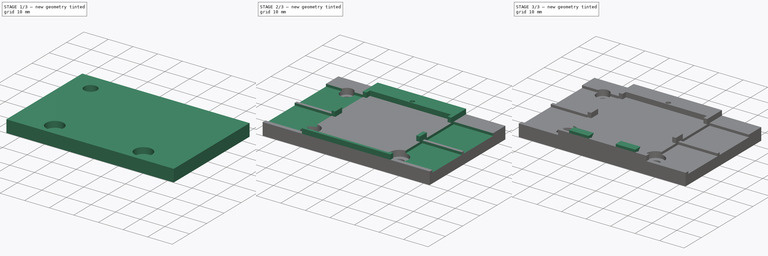
[diagram: build sequence overview — one tinted view per stage of 3, left to right]
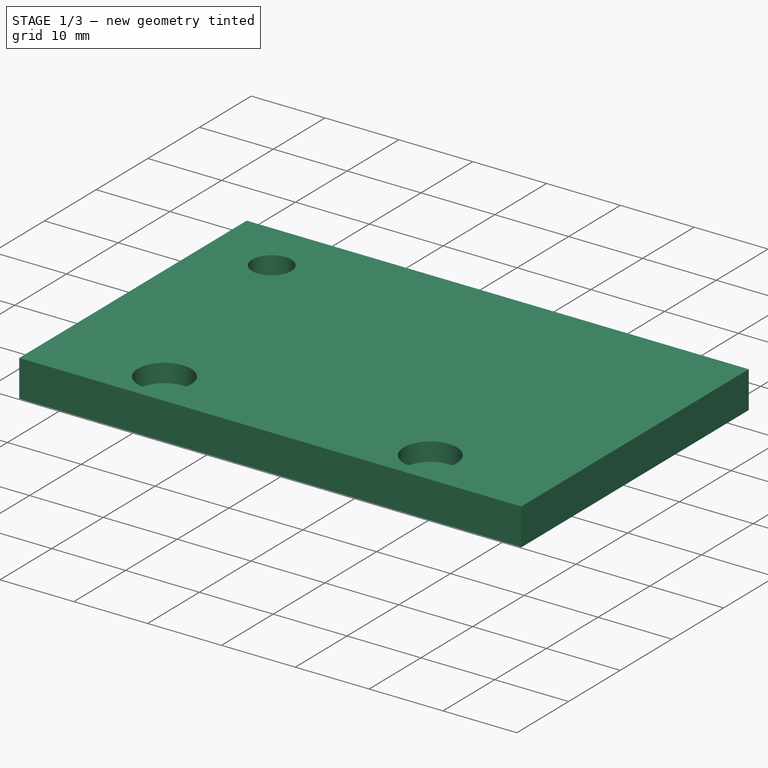
[diagram: stage 1 of 3 — iso view after this stage's code; geometry added in this stage tinted green]
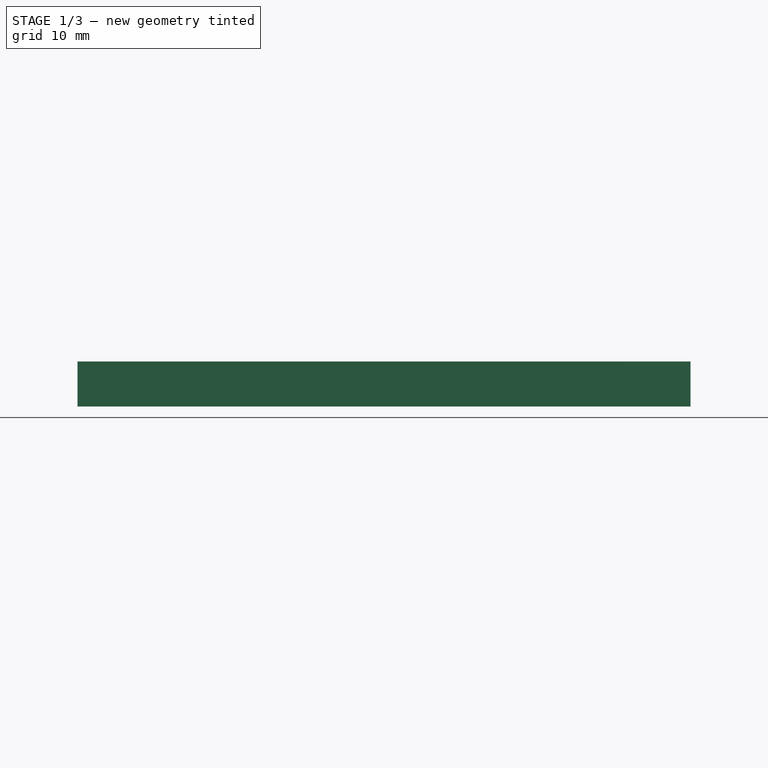
[diagram: stage 1 of 3 — front view after this stage's code; geometry added in this stage tinted green]
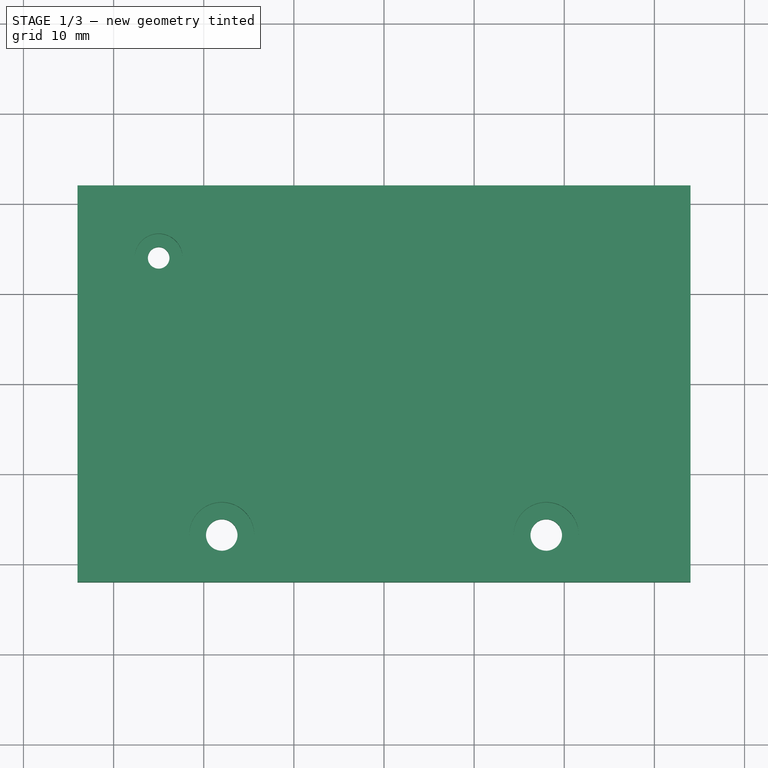
[diagram: stage 1 of 3 — top view after this stage's code; geometry added in this stage tinted green]
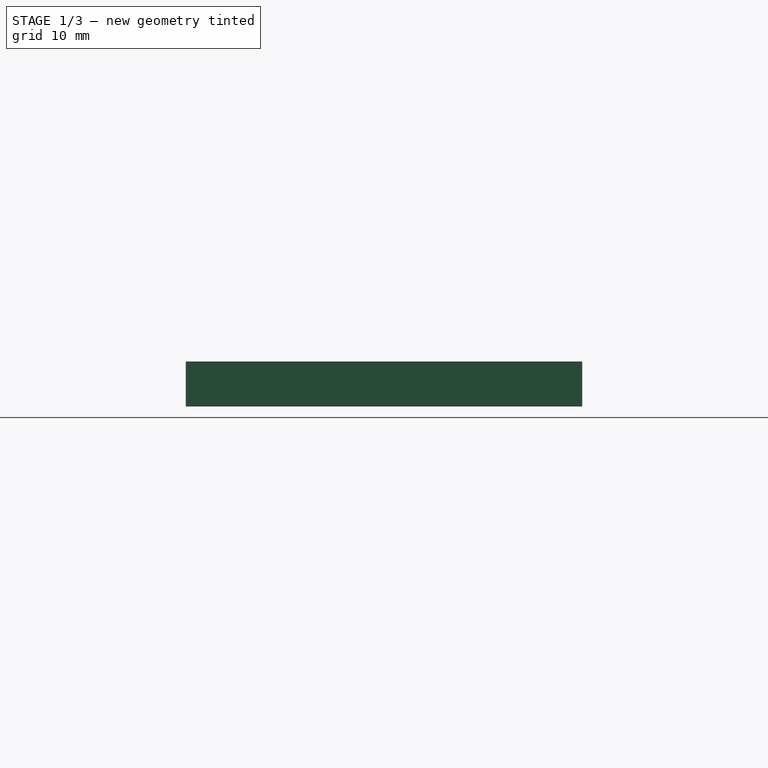
[diagram: stage 1 of 3 — right view after this stage's code; geometry added in this stage tinted green]
FCSTD DOCUMENT  (FreeCAD 1.0R39319 (Git))
Label: UsbPcbHub2
License: All rights reserved
LicenseURL: https://en.wikipedia.org/wiki/All_rights_reserved
objects: Sketcher::SketchObject×7, PartDesign::Pocket×4, PartDesign::Pad×3, App::VarSet×1, PartDesign::Body×1
note: 36 computed .brp shape members not serialized (recipe doc carries the construction recipe); baked Part::Feature solids carry a one-line shape summary decoded from their .brp

FEATURE [App::VarSet] VarSet
  BlackHeaderDiameter = 7.2
  BlackHeaderHeight = 2
  BlackPassThroughDiameter = 3.5
  BorderToLan = 30
  BorderToSD = 36
  DX = 68
  DY = 44
  FrontScrewDistance = 58
  Guide = 1.5
  Margin = 1
  MiniBlackHeaderDiameter = 5.3
  MiniBlackPassThroughDiameter = 2.4
  MiniBlackSelfTappingDiameter = 1.8
  PcbDX = 36.4
  PcbDY = 33
  PcbThickness = 2
  PlatformThickness = 5
  UsbConnectorRecess = 1
FEATURE [Sketcher::SketchObject] Sketch
  ArcFitTolerance = 1e-06
  AttachmentSupport = -> [XY_Plane]
  FullyConstrained = true
  MakeInternals = false
  MapMode = 5
  expr: Constraints[15] = VarSet.BlackPassThroughDiameter
  expr: Constraints[19] = 10.5 mm / 2
  expr: Constraints[27] = VarSet.BorderToSD
  expr: Constraints[29] = VarSet.MiniBlackPassThroughDiameter
  expr: Constraints[8] = VarSet.DX
  expr: Constraints[9] = VarSet.DY
  sketch-geometry (11):
    g0: LineSegment StartX=34 StartY=-22 StartZ=0 EndX=34 EndY=22 EndZ=0
    g1: LineSegment StartX=34 StartY=22 StartZ=0 EndX=-34 EndY=22 EndZ=0
    g2: LineSegment StartX=-34 StartY=22 StartZ=0 EndX=-34 EndY=-22 EndZ=0
    g3: LineSegment StartX=-34 StartY=-22 StartZ=0 EndX=34 EndY=-22 EndZ=0
    g4: Circle CenterX=18 CenterY=-16.75 CenterZ=0 NormalX=0 NormalY=0 NormalZ=1 AngleXU=0 Radius=1.75
    g5: Circle CenterX=-18 CenterY=-16.75 CenterZ=0 NormalX=0 NormalY=0 NormalZ=1 AngleXU=0 Radius=1.75
    g6: LineSegment [constr] StartX=-18 StartY=-16.75 StartZ=0 EndX=18 EndY=-16.75 EndZ=0
    g7: LineSegment [constr] StartX=18 StartY=-16.75 StartZ=0 EndX=18 EndY=-22 EndZ=0
    g8: LineSegment [constr] StartX=-25 StartY=-22 StartZ=0 EndX=-25 EndY=14 EndZ=0
    g9: LineSegment [constr] StartX=-25 StartY=14 StartZ=0 EndX=-34 EndY=14 EndZ=0
    g10: Circle CenterX=-25 CenterY=14 CenterZ=0 NormalX=0 NormalY=0 NormalZ=1 AngleXU=0 Radius=1.2
  constraints (30):
    c: Coincident(g0,g1)
    c: Coincident(g1,g2)
    c: Coincident(g2,g3)
    c: Coincident(g3,g0)
    c: Vertical(g0)
    c: Vertical(g2)
    c: Horizontal(g1)
    c: Horizontal(g3)
    c: Distance(g1) = 68
    c: Distance(g2) = 44
    c: Symmetric(g0,g2,g-1)
    c: Coincident(g6,g5)
    c: Coincident(g6,g4)
    c: Distance(g6) = 36
    c: Symmetric(g4,g5,g-2)
    c: Diameter(g4) = 3.5
    c: Coincident(g7,g4)
    c: PointOnObject(g7,g3)
    c: Vertical(g7)
    c: Distance(g7) = 5.25
    c: Equal(g4,g5)
    c: PointOnObject(g8,g3)
    c: Vertical(g8)
    c: Coincident(g9,g8)
    c: PointOnObject(g9,g2)
    c: Horizontal(g9)
    c: Distance(g9) = 9
    c: Distance(g8) = 36
    c: Coincident(g10,g8)
    c: Diameter(g10) = 2.4
FEATURE [PartDesign::Pad] Pad  label="Platform"
  Direction = (0,0,1)
  Length = 5
  Length2 = 10
  Profile = -> Sketch
  ReferenceAxis = -> Sketch [N_Axis]
  Refine = true
  Suppressed = false
  Type = 0
  expr: Length = VarSet.PlatformThickness
FEATURE [Sketcher::SketchObject] Sketch001
  ArcFitTolerance = 1e-06
  AttachmentSupport = -> [Pad]
  ExternalGeometry = -> [Pad]
  FullyConstrained = true
  MakeInternals = false
  MapMode = 5
  Placement = pos=(0,0,5) rot=(0,0,1;0rad)
  expr: Constraints[3] = VarSet.BlackHeaderDiameter
  expr: Constraints[5] = VarSet.MiniBlackHeaderDiameter
  sketch-geometry (3):
    g0: Circle CenterX=-18 CenterY=-16.75 CenterZ=0 NormalX=0 NormalY=0 NormalZ=1 AngleXU=0 Radius=3.6
    g1: Circle CenterX=18 CenterY=-16.75 CenterZ=0 NormalX=0 NormalY=0 NormalZ=1 AngleXU=0 Radius=3.6
    g2: Circle CenterX=-25 CenterY=14 CenterZ=0 NormalX=0 NormalY=0 NormalZ=1 AngleXU=0 Radius=2.65
  constraints (6):
    c: Coincident(g0,g-4)
    c: Coincident(g1,g-3)
    c: Equal(g1,g0)
    c: Diameter(g1) = 7.2
    c: Coincident(g2,g-5)
    c: Diameter(g2) = 5.3
FEATURE [PartDesign::Pocket] Pocket  label="Screw Header Recess"
  BaseFeature = -> Pad
  Direction = (0,0,-1)
  Length = 2.5
  Length2 = 5
  Profile = -> Sketch001
  ReferenceAxis = -> Sketch001 [N_Axis]
  Refine = true
  Suppressed = false
  Type = 0
  expr: Length = VarSet.BlackHeaderHeight + 0.5 mm
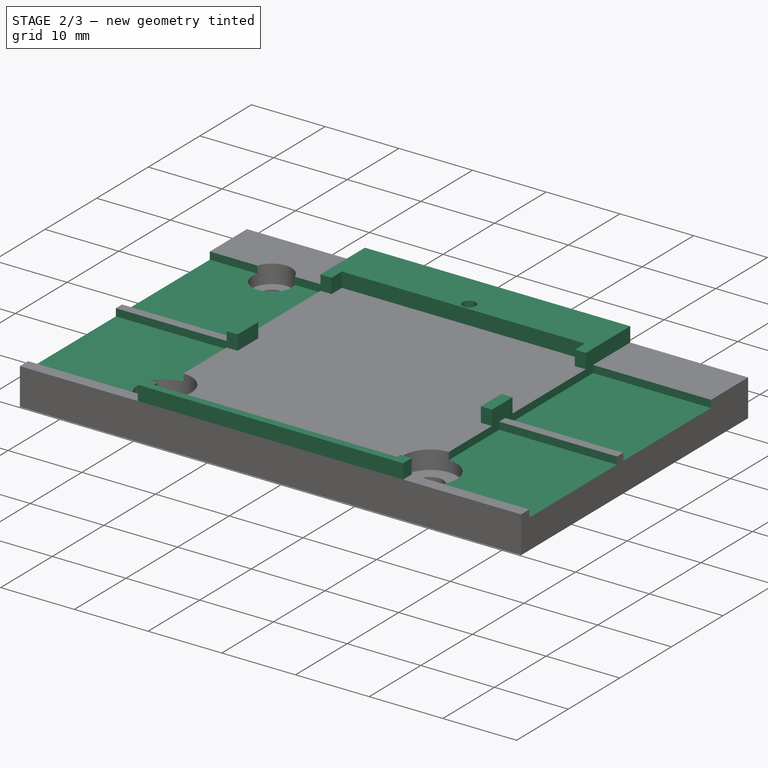
[diagram: stage 2 of 3 — iso view after this stage's code; geometry added in this stage tinted green]
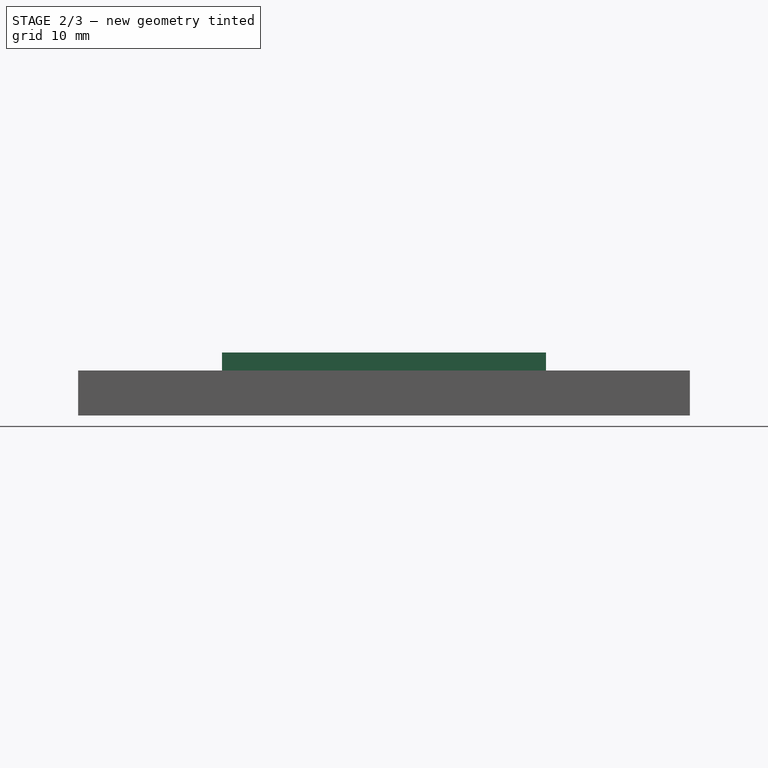
[diagram: stage 2 of 3 — front view after this stage's code; geometry added in this stage tinted green]
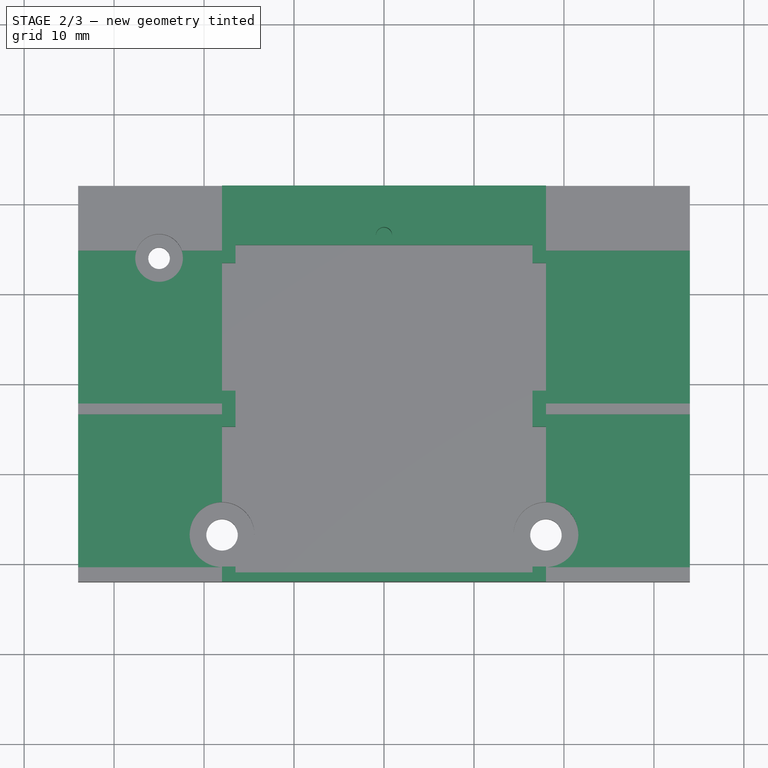
[diagram: stage 2 of 3 — top view after this stage's code; geometry added in this stage tinted green]
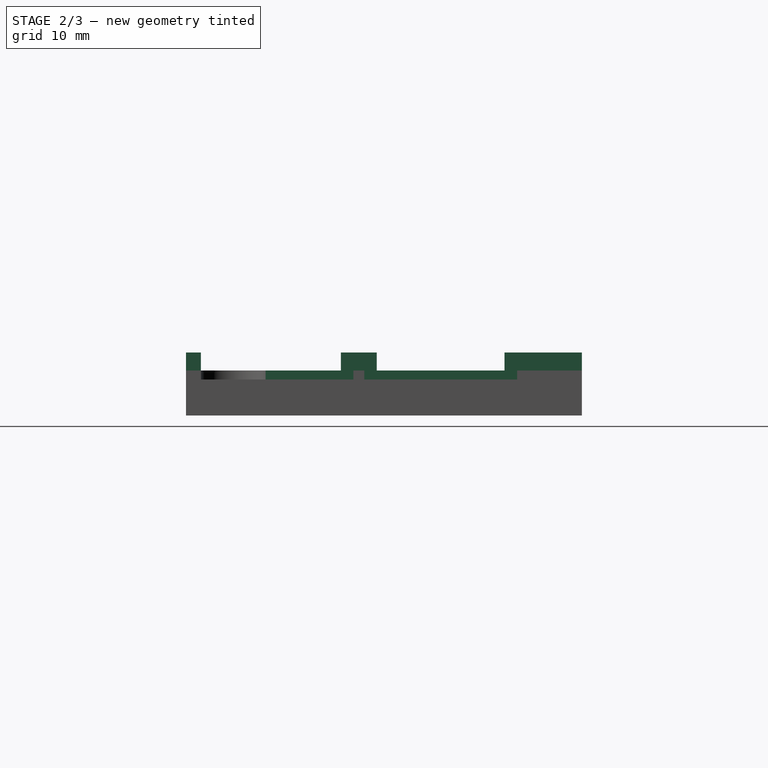
[diagram: stage 2 of 3 — right view after this stage's code; geometry added in this stage tinted green]
FEATURE [Sketcher::SketchObject] Sketch002
  ArcFitTolerance = 1e-06
  AttachmentSupport = -> [Pocket]
  ExternalGeometry = -> [Pocket]
  FullyConstrained = true
  MakeInternals = false
  MapMode = 5
  Placement = pos=(0,0,5) rot=(0,0,1;0rad)
  expr: Constraints[18] = VarSet.Guide
  expr: Constraints[7] = VarSet.PcbDY
  expr: Constraints[85] = VarSet.Margin
  expr: Constraints[8] = VarSet.PcbDX
  sketch-geometry (31):
    g0: LineSegment [constr] StartX=-16.5 StartY=15.4 StartZ=0 EndX=-16.5 EndY=-21 EndZ=0
    g1: LineSegment StartX=-16.5 StartY=-21 StartZ=0 EndX=16.5 EndY=-21 EndZ=0
    g2: LineSegment [constr] StartX=16.5 StartY=-21 StartZ=0 EndX=16.5 EndY=15.4 EndZ=0
    g3: LineSegment [constr] StartX=16.5 StartY=15.4 StartZ=0 EndX=-16.5 EndY=15.4 EndZ=0
    g4: LineSegment StartX=-18 StartY=-22 StartZ=0 EndX=18 EndY=-22 EndZ=0
    g5: LineSegment StartX=18 StartY=-22 StartZ=0 EndX=18 EndY=-20.35 EndZ=0
    g6: LineSegment StartX=18 StartY=-20.35 StartZ=0 EndX=16.5 EndY=-20.35 EndZ=0
    g7: LineSegment StartX=16.5 StartY=-20.35 StartZ=0 EndX=16.5 EndY=-21 EndZ=0
    g8: LineSegment [constr] StartX=16.5 StartY=-21 StartZ=0 EndX=16.5 EndY=-22 EndZ=0
    g9: LineSegment StartX=-18 StartY=-22 StartZ=0 EndX=-18 EndY=-20.35 EndZ=0
    g10: LineSegment StartX=-18 StartY=-20.35 StartZ=0 EndX=-16.5 EndY=-20.35 EndZ=0
    g11: LineSegment StartX=-16.5 StartY=-21 StartZ=0 EndX=-16.5 EndY=-20.35 EndZ=0
    g12: LineSegment StartX=16.5 StartY=15.4 StartZ=0 EndX=16.5 EndY=13.4 EndZ=0
    g13: LineSegment StartX=16.5 StartY=13.4 StartZ=0 EndX=18 EndY=13.4 EndZ=0
    g14: LineSegment StartX=18 StartY=13.4 StartZ=0 EndX=18 EndY=22 EndZ=0
    g15: LineSegment StartX=-16.5 StartY=15.4 StartZ=0 EndX=-16.5 EndY=13.4 EndZ=0
    g16: LineSegment StartX=-16.5 StartY=13.4 StartZ=0 EndX=-18 EndY=13.4 EndZ=0
    g17: LineSegment StartX=-18 StartY=13.4 StartZ=0 EndX=-18 EndY=22 EndZ=0
    g18: LineSegment StartX=-18 StartY=22 StartZ=0 EndX=18 EndY=22 EndZ=0
    g19: LineSegment StartX=-16.5 StartY=15.4 StartZ=0 EndX=16.5 EndY=15.4 EndZ=0
    g20: LineSegment StartX=-16.5 StartY=-0.8 StartZ=0 EndX=-18 EndY=-0.8 EndZ=0
    g21: LineSegment StartX=-18 StartY=-0.8 StartZ=0 EndX=-18 EndY=-4.8 EndZ=0
    g22: LineSegment StartX=-18 StartY=-4.8 StartZ=0 EndX=-16.5 EndY=-4.8 EndZ=0
    g23: LineSegment StartX=-16.5 StartY=-4.8 StartZ=0 EndX=-16.5 EndY=-0.8 EndZ=0
    g24: LineSegment StartX=16.5 StartY=-0.8 StartZ=0 EndX=16.5 EndY=-4.8 EndZ=0
    g25: LineSegment StartX=16.5 StartY=-4.8 StartZ=0 EndX=18 EndY=-4.8 EndZ=0
    g26: LineSegment StartX=18 StartY=-4.8 StartZ=0 EndX=18 EndY=-0.8 EndZ=0
    g27: LineSegment StartX=18 StartY=-0.8 StartZ=0 EndX=16.5 EndY=-0.8 EndZ=0
    g28: LineSegment [constr] StartX=16.5 StartY=-4.8 StartZ=0 EndX=-16.5 EndY=-21 EndZ=0
    g29: LineSegment [constr] StartX=16.5 StartY=-0.8 StartZ=0 EndX=-16.5 EndY=15.4 EndZ=0
    g30: LineSegment [constr] StartX=16.5 StartY=-4.8 StartZ=0 EndX=-16.5 EndY=-4.8 EndZ=0
  constraints (86):
    c: Coincident(g0,g1)
    c: Coincident(g1,g2)
    c: Coincident(g2,g3)
    c: Coincident(g3,g0)
    c: Vertical(g0)
    c: Vertical(g2)
    c: Horizontal(g3)
    c: DistanceX(g1,g1) = 33
    c: Distance(g2) = 36.4
    c: Symmetric(g0,g1,g-2)
    c: PointOnObject(g4,g-3)
    c: PointOnObject(g4,g-3)
    c: Coincident(g5,g4)
    c: Vertical(g5)
    c: PointOnObject(g5,g-4)
    c: PointOnObject(g6,g2)
    c: Coincident(g6,g5)
    c: Horizontal(g6)
    c: Distance(g6) = 1.5
    c: Coincident(g7,g6)
    c: Coincident(g7,g1)
    c: Coincident(g8,g1)
    c: Vertical(g8)
    c: PointOnObject(g8,g-3)
    c: Coincident(g9,g4)
    c: Vertical(g9)
    c: PointOnObject(g9,g-5)
    c: Coincident(g10,g9)
    c: Horizontal(g10)
    c: PointOnObject(g10,g0)
    c: Equal(g6,g10)
    c: Coincident(g11,g0)
    c: Coincident(g11,g10)
    c: Coincident(g12,g2)
    c: PointOnObject(g12,g2)
    c: Distance(g12) = 2
    c: Coincident(g13,g12)
    c: Horizontal(g13)
    c: Equal(g6,g13)
    c: Coincident(g14,g13)
    c: PointOnObject(g14,g-6)
    c: Vertical(g14)
    c: Coincident(g15,g0)
    c: PointOnObject(g15,g0)
    c: Equal(g12,g15)
    c: Coincident(g16,g15)
    c: Horizontal(g16)
    c: Equal(g16,g13)
    c: Coincident(g17,g16)
    c: PointOnObject(g17,g-6)
    c: Vertical(g17)
    c: Coincident(g18,g17)
    c: Coincident(g18,g14)
    c: Coincident(g19,g0)
    c: Coincident(g19,g2)
    c: Coincident(g20,g21)
    c: Coincident(g21,g22)
    c: Coincident(g22,g23)
    c: Coincident(g23,g20)
    c: Horizontal(g20)
    c: Horizontal(g22)
    c: Vertical(g21)
    c: Vertical(g23)
    c: PointOnObject(g20,g0)
    c: Coincident(g24,g25)
    c: Coincident(g25,g26)
    c: Coincident(g26,g27)
    c: Coincident(g27,g24)
    c: Vertical(g24)
    c: Vertical(g26)
    c: Horizontal(g25)
    c: Horizontal(g27)
    c: PointOnObject(g24,g2)
    c: Equal(g6,g25)
    c: Equal(g25,g22)
    c: Equal(g23,g24)
    c: DistanceY(g26,g26) = 4
    c: Coincident(g28,g24)
    c: Coincident(g28,g0)
    c: Coincident(g29,g24)
    c: Coincident(g29,g0)
    c: Equal(g29,g28)
    c: Coincident(g30,g24)
    c: Horizontal(g30)
    c: Coincident(g30,g22)
    c: Distance(g8) = 1
FEATURE [PartDesign::Pad] Pad001  label="PCB Guides"
  BaseFeature = -> Pocket
  Direction = (0,0,1)
  Length = 2
  Length2 = 10
  Profile = -> Sketch002
  ReferenceAxis = -> Sketch002 [N_Axis]
  Refine = true
  Suppressed = false
  Type = 0
  expr: Length = VarSet.PcbThickness
FEATURE [Sketcher::SketchObject] Sketch003
  ArcFitTolerance = 1e-06
  AttachmentSupport = -> [Pad001]
  ExternalGeometry = -> [Pad001]
  FullyConstrained = true
  MakeInternals = false
  MapMode = 5
  Placement = pos=(0,0,7) rot=(0,0,1;0rad)
  expr: Constraints[1] = VarSet.MiniBlackSelfTappingDiameter
  expr: Constraints[4] = VarSet.MiniBlackSelfTappingDiameter / 2 + 0.2 mm
  sketch-geometry (2):
    g0: Circle CenterX=0 CenterY=16.5 CenterZ=0 NormalX=0 NormalY=0 NormalZ=1 AngleXU=0 Radius=0.9
    g1: LineSegment [constr] StartX=0 StartY=16.5 StartZ=0 EndX=-4.3e-15 EndY=15.4 EndZ=0
  constraints (5):
    c: PointOnObject(g0,g-2)
    c: Diameter(g0) = 1.8
    c: Coincident(g1,g0)
    c: Symmetric(g-3,g-3,g1)
    c: Distance(g1) = 1.1
FEATURE [PartDesign::Pocket] Pocket001  label="PCB Fixing Screw"
  BaseFeature = -> Pad001
  Direction = (0,0,-1)
  Length = 5
  Length2 = 5
  Profile = -> Sketch003
  ReferenceAxis = -> Sketch003 [N_Axis]
  Refine = true
  Suppressed = false
  Type = 0
FEATURE [Sketcher::SketchObject] Sketch004
  ArcFitTolerance = 1e-06
  AttachmentSupport = -> [Pocket001]
  ExternalGeometry = -> [Pocket001]
  FullyConstrained = true
  MakeInternals = false
  MapMode = 5
  Placement = pos=(0,0,5) rot=(0,0,1;0rad)
  sketch-geometry (25):
    g0: LineSegment StartX=18 StartY=14.8 StartZ=0 EndX=18 EndY=-2.2 EndZ=0
    g1: LineSegment StartX=18 StartY=-2.2 StartZ=0 EndX=34 EndY=-2.2 EndZ=0
    g2: LineSegment StartX=34 StartY=-2.2 StartZ=0 EndX=34 EndY=14.8 EndZ=0
    g3: LineSegment StartX=34 StartY=14.8 StartZ=0 EndX=18 EndY=14.8 EndZ=0
    g4: LineSegment StartX=18 StartY=-3.4 StartZ=0 EndX=18 EndY=-20.4 EndZ=0
    g5: LineSegment StartX=18 StartY=-20.4 StartZ=0 EndX=34 EndY=-20.4 EndZ=0
    g6: LineSegment StartX=34 StartY=-20.4 StartZ=0 EndX=34 EndY=-3.4 EndZ=0
    g7: LineSegment StartX=34 StartY=-3.4 StartZ=0 EndX=18 EndY=-3.4 EndZ=0
    g8: LineSegment [constr] StartX=-16.5 StartY=-2.8 StartZ=0 EndX=16.5 EndY=-2.8 EndZ=0
    g9: LineSegment [constr] StartX=-16.5 StartY=-2.8 StartZ=0 EndX=18 EndY=14.8 EndZ=0
    g10: LineSegment [constr] StartX=18 StartY=-2.2 StartZ=0 EndX=-16.5 EndY=15.4 EndZ=0
    g11: LineSegment [constr] StartX=18 StartY=-20.4 StartZ=0 EndX=-16.5 EndY=-2.8 EndZ=0
    g12: LineSegment [constr] StartX=18 StartY=-3.4 StartZ=0 EndX=-16.5 EndY=-21 EndZ=0
    g13: LineSegment StartX=-18 StartY=14.8 StartZ=0 EndX=-34 EndY=14.8 EndZ=0
    g14: LineSegment StartX=-34 StartY=14.8 StartZ=0 EndX=-34 EndY=-2.2 EndZ=0
    g15: LineSegment StartX=-34 StartY=-2.2 StartZ=0 EndX=-18 EndY=-2.2 EndZ=0
    g16: LineSegment StartX=-18 StartY=-2.2 StartZ=0 EndX=-18 EndY=14.8 EndZ=0
    g17: LineSegment [constr] StartX=-18 StartY=-2.2 StartZ=0 EndX=16.5 EndY=15.4 EndZ=0
    g18: LineSegment [constr] StartX=-18 StartY=14.8 StartZ=0 EndX=16.5 EndY=-2.8 EndZ=0
    g19: LineSegment StartX=-34 StartY=-3.4 StartZ=0 EndX=-34 EndY=-20.4 EndZ=0
    g20: LineSegment StartX=-34 StartY=-20.4 StartZ=0 EndX=-18 EndY=-20.4 EndZ=0
    g21: LineSegment StartX=-18 StartY=-20.4 StartZ=0 EndX=-18 EndY=-3.4 EndZ=0
    g22: LineSegment StartX=-18 StartY=-3.4 StartZ=0 EndX=-34 EndY=-3.4 EndZ=0
    g23: LineSegment [constr] StartX=-18 StartY=-3.4 StartZ=0 EndX=16.5 EndY=-21 EndZ=0
    g24: LineSegment [constr] StartX=-18 StartY=-20.4 StartZ=0 EndX=16.5 EndY=-2.8 EndZ=0
  constraints (67):
    c: Coincident(g0,g1)
    c: Coincident(g1,g2)
    c: Coincident(g2,g3)
    c: Coincident(g3,g0)
    c: Vertical(g0)
    c: Vertical(g2)
    c: Horizontal(g1)
    c: Horizontal(g3)
    c: Distance(g0) = 17
    c: Coincident(g4,g5)
    c: Coincident(g5,g6)
    c: Coincident(g6,g7)
    c: Coincident(g7,g4)
    c: Vertical(g4)
    c: Vertical(g6)
    c: Horizontal(g5)
    c: Horizontal(g7)
    c: PointOnObject(g0,g-4)
    c: PointOnObject(g2,g-6)
    c: Equal(g0,g4)
    c: Symmetric(g-7,g-7,g8)
    c: Horizontal(g8)
    c: PointOnObject(g8,g-8)
    c: Coincident(g9,g8)
    c: Coincident(g9,g0)
    c: Coincident(g10,g0)
    c: Equal(g9,g10)
    c: PointOnObject(g4,g-4)
    c: Coincident(g10,g-9)
    c: Coincident(g11,g8)
    c: Coincident(g12,g4)
    c: Coincident(g12,g-10)
    c: Equal(g11,g12)
    c: Coincident(g11,g4)
    c: PointOnObject(g6,g-6)
    c: Coincident(g13,g14)
    c: Coincident(g14,g15)
    c: Coincident(g15,g16)
    c: Coincident(g16,g13)
    c: Horizontal(g13)
    c: Horizontal(g15)
    c: Vertical(g14)
    c: Vertical(g16)
    c: Equal(g0,g16)
    c: PointOnObject(g15,g-3)
    c: Coincident(g17,g15)
    c: Coincident(g17,g-9)
    c: Coincident(g18,g13)
    c: Coincident(g18,g8)
    c: Equal(g17,g18)
    c: PointOnObject(g13,g-5)
    c: Coincident(g19,g20)
    c: Coincident(g20,g21)
    c: Coincident(g21,g22)
    c: Coincident(g22,g19)
    c: Vertical(g19)
    c: Vertical(g21)
    c: Horizontal(g20)
    c: Horizontal(g22)
    c: PointOnObject(g19,g-5)
    c: PointOnObject(g21,g-3)
    c: Coincident(g23,g21)
    c: Coincident(g23,g-10)
    c: Coincident(g24,g20)
    c: Coincident(g24,g8)
    c: Equal(g23,g24)
    c: Equal(g21,g0)
FEATURE [PartDesign::Pocket] Pocket002  label="USB Connector recess"
  BaseFeature = -> Pocket001
  Direction = (0,0,-1)
  Length = 1
  Length2 = 5
  Profile = -> Sketch004
  ReferenceAxis = -> Sketch004 [N_Axis]
  Refine = true
  Suppressed = false
  Type = 0
  expr: Length = VarSet.UsbConnectorRecess
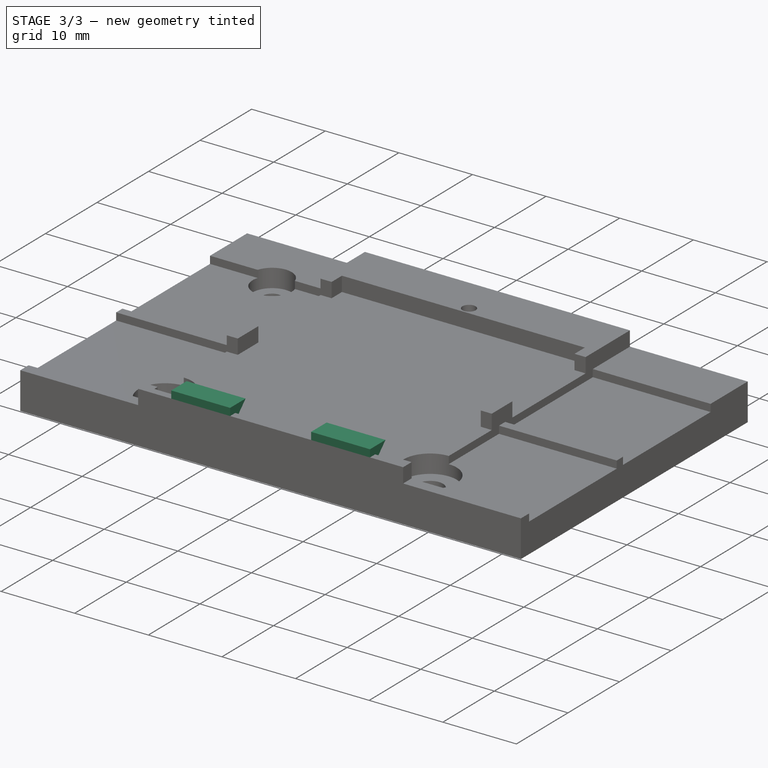
[diagram: stage 3 of 3 — iso view after this stage's code; geometry added in this stage tinted green]
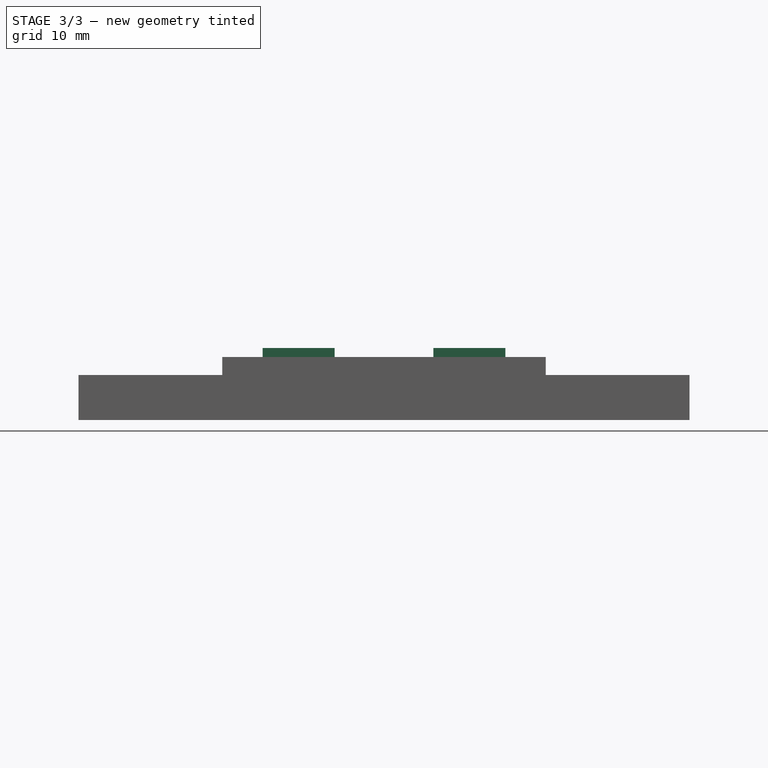
[diagram: stage 3 of 3 — front view after this stage's code; geometry added in this stage tinted green]
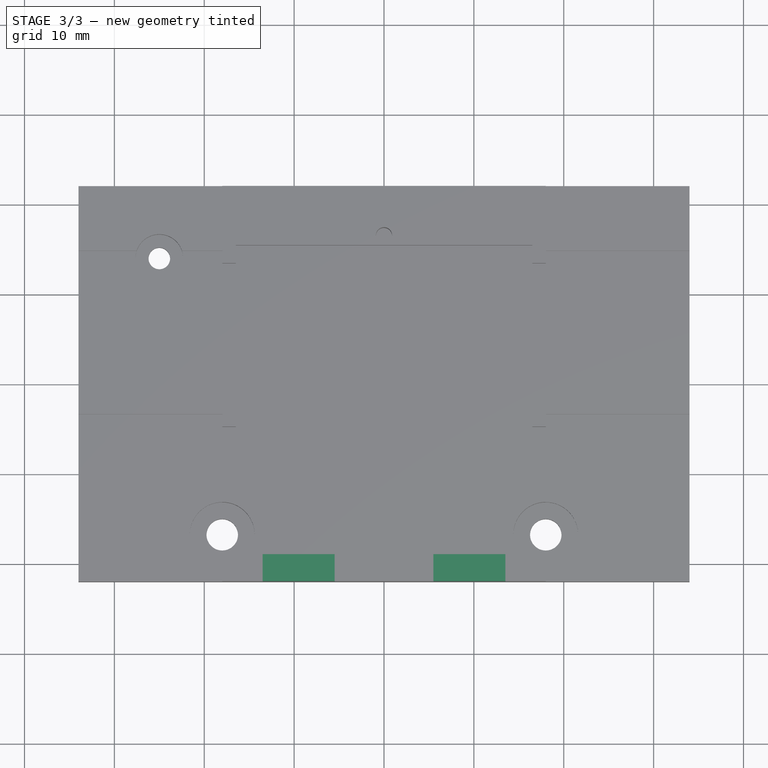
[diagram: stage 3 of 3 — top view after this stage's code; geometry added in this stage tinted green]
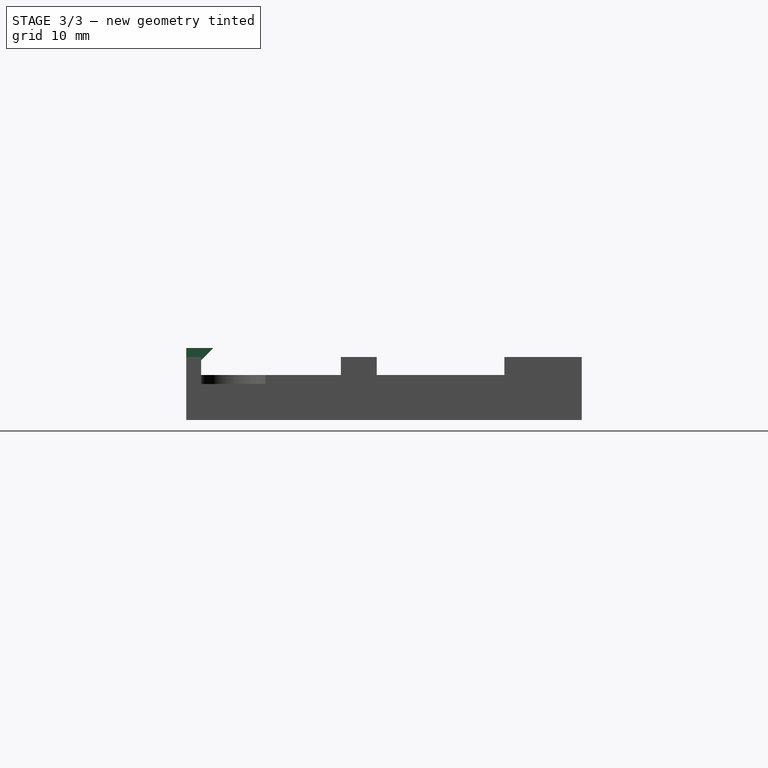
[diagram: stage 3 of 3 — right view after this stage's code; geometry added in this stage tinted green]
FEATURE [Sketcher::SketchObject] Sketch005
  ArcFitTolerance = 1e-06
  AttachmentSupport = -> [Pocket002]
  ExternalGeometry = -> [Pocket002]
  FullyConstrained = true
  MakeInternals = false
  MapMode = 5
  Placement = pos=(0,0,7) rot=(0,0,1;0rad)
  expr: Constraints[17] = VarSet.Margin * 3
  sketch-geometry (9):
    g0: LineSegment StartX=-5.5 StartY=-22 StartZ=0 EndX=-5.5 EndY=-19 EndZ=0
    g1: LineSegment StartX=-5.5 StartY=-19 StartZ=0 EndX=-13.5 EndY=-19 EndZ=0
    g2: LineSegment StartX=-13.5 StartY=-19 StartZ=0 EndX=-13.5 EndY=-22 EndZ=0
    g3: LineSegment StartX=-13.5 StartY=-22 StartZ=0 EndX=-5.5 EndY=-22 EndZ=0
    g4: LineSegment StartX=13.5 StartY=-22 StartZ=0 EndX=13.5 EndY=-19 EndZ=0
    g5: LineSegment StartX=13.5 StartY=-19 StartZ=0 EndX=5.5 EndY=-19 EndZ=0
    g6: LineSegment StartX=5.5 StartY=-19 StartZ=0 EndX=5.5 EndY=-22 EndZ=0
    g7: LineSegment StartX=5.5 StartY=-22 StartZ=0 EndX=13.5 EndY=-22 EndZ=0
    g8: LineSegment [constr] StartX=-5.5 StartY=-19 StartZ=0 EndX=5.5 EndY=-19 EndZ=0
  constraints (25):
    c: Coincident(g0,g1)
    c: Coincident(g1,g2)
    c: Coincident(g2,g3)
    c: Coincident(g3,g0)
    c: Vertical(g0)
    c: Vertical(g2)
    c: Horizontal(g1)
    c: Horizontal(g3)
    c: PointOnObject(g0,g-3)
    c: Coincident(g4,g5)
    c: Coincident(g5,g6)
    c: Coincident(g6,g7)
    c: Coincident(g7,g4)
    c: Vertical(g4)
    c: Vertical(g6)
    c: Horizontal(g5)
    c: Horizontal(g7)
    c: Distance(g2) = 3
    c: Equal(g2,g6)
    c: Equal(g3,g7)
    c: Coincident(g8,g0)
    c: Coincident(g8,g5)
    c: Distance(g8) = 11
    c: Symmetric(g6,g0,g-2)
    c: Distance(g7) = 8
FEATURE [PartDesign::Pad] Pad002  label="PCB Stop"
  BaseFeature = -> Pocket002
  Direction = (0,0,1)
  Length = 2
  Length2 = 10
  Midplane = true
  Profile = -> Sketch005
  ReferenceAxis = -> Sketch005 [N_Axis]
  Refine = true
  Suppressed = false
  Type = 0
FEATURE [Sketcher::SketchObject] Sketch006
  ArcFitTolerance = 1e-06
  AttachmentSupport = -> [Pad002]
  ExternalGeometry = -> [Pad002]
  FullyConstrained = true
  MakeInternals = false
  MapMode = 5
  Placement = pos=(13.5,0,0) rot=(0.57735,0.57735,0.57735;2.0944rad)
  sketch-geometry (3):
    g0: LineSegment StartX=-19 StartY=6 StartZ=0 EndX=-21 EndY=6 EndZ=0
    g1: LineSegment StartX=-19 StartY=6 StartZ=0 EndX=-19 EndY=8 EndZ=0
    g2: LineSegment StartX=-21 StartY=6 StartZ=0 EndX=-19 EndY=8 EndZ=0
  constraints (6):
    c: Coincident(g0,g-4)
    c: Coincident(g0,g-3)
    c: Coincident(g1,g0)
    c: Coincident(g1,g-4)
    c: Coincident(g2,g0)
    c: Coincident(g2,g1)
FEATURE [PartDesign::Pocket] Pocket003  label="PCB Stop Angle"
  BaseFeature = -> Pad002
  Direction = (-1,0,0)
  Length = 27
  Length2 = 5
  Profile = -> Sketch006
  ReferenceAxis = -> Sketch006 [N_Axis]
  Refine = true
  Suppressed = false
  Type = 0
FEATURE [PartDesign::Body] Body
  AllowCompound = false
  Group = -> [Sketch,Pad,Sketch001,Pocket,Sketch002,Pad001,Sketch003,Pocket001,Sketch004,Pocket002,Sketch005,Pad002,Sketch006,Pocket003]
  Origin = -> Origin
  Tip = -> Pocket003
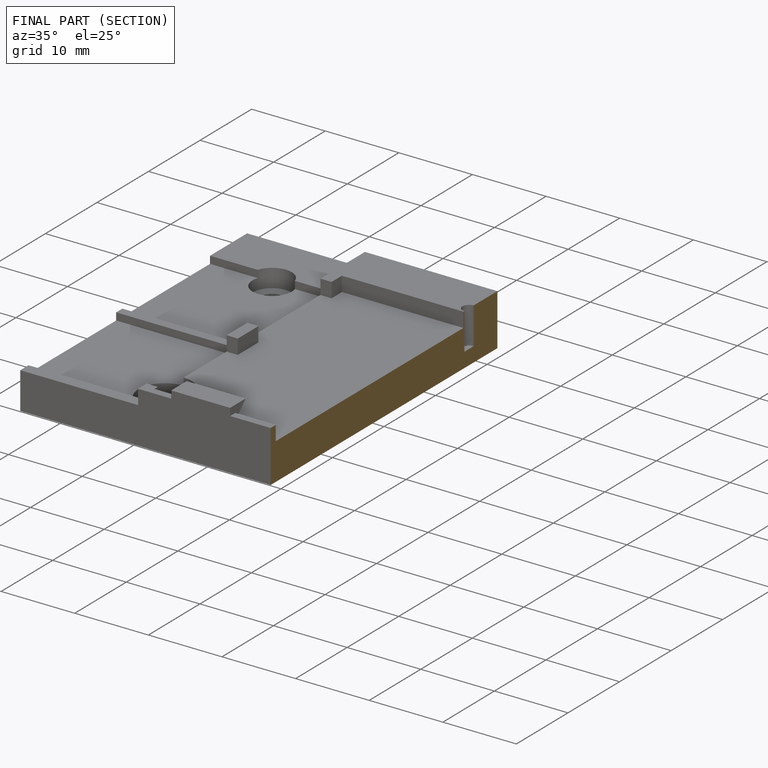
[diagram: finished part — half-section view (interior)]
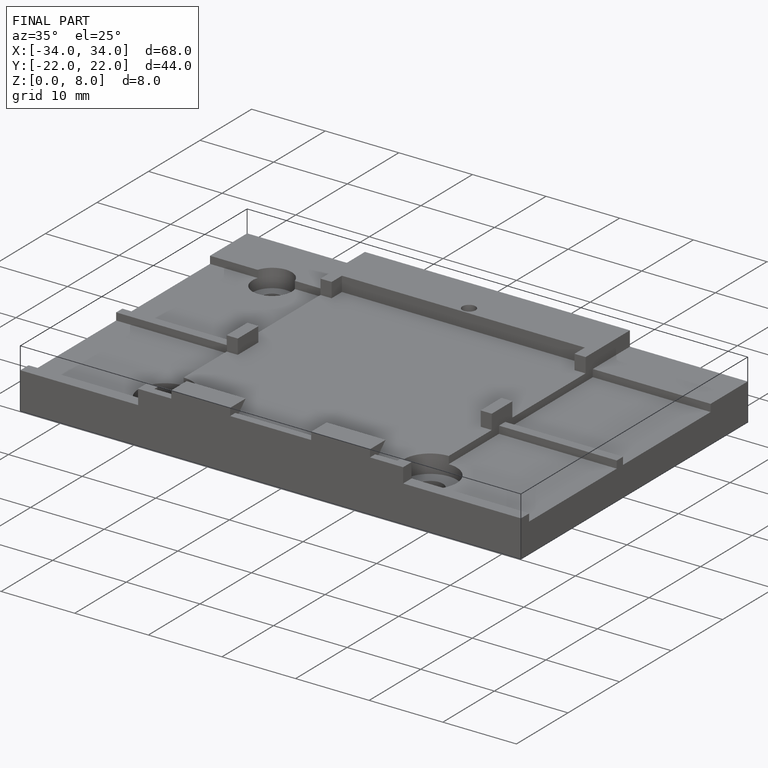
[diagram: finished part — iso view with bounding-box wireframe]
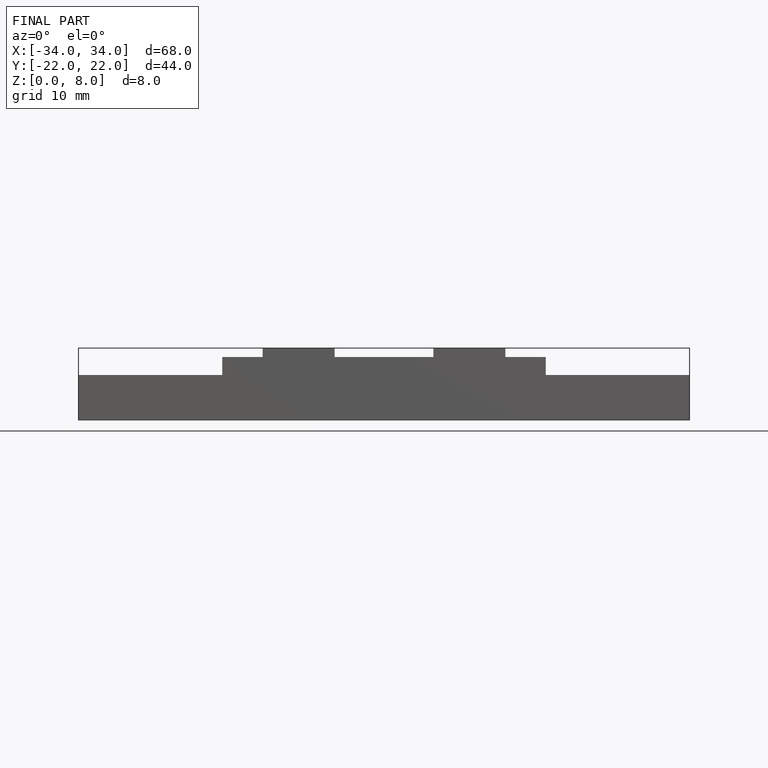
[diagram: finished part — front view with bounding-box wireframe]
